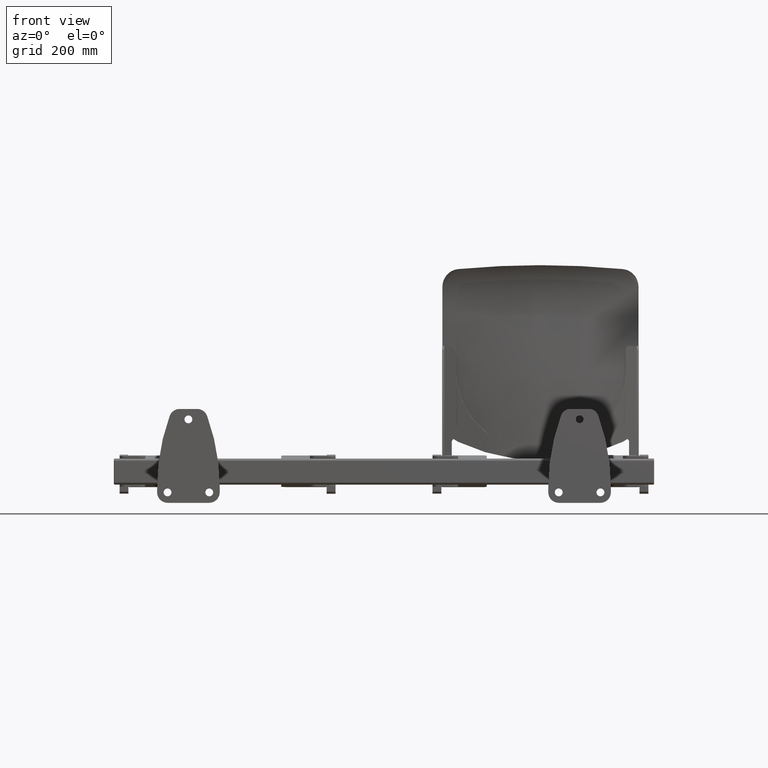
[diagram: clean part render]
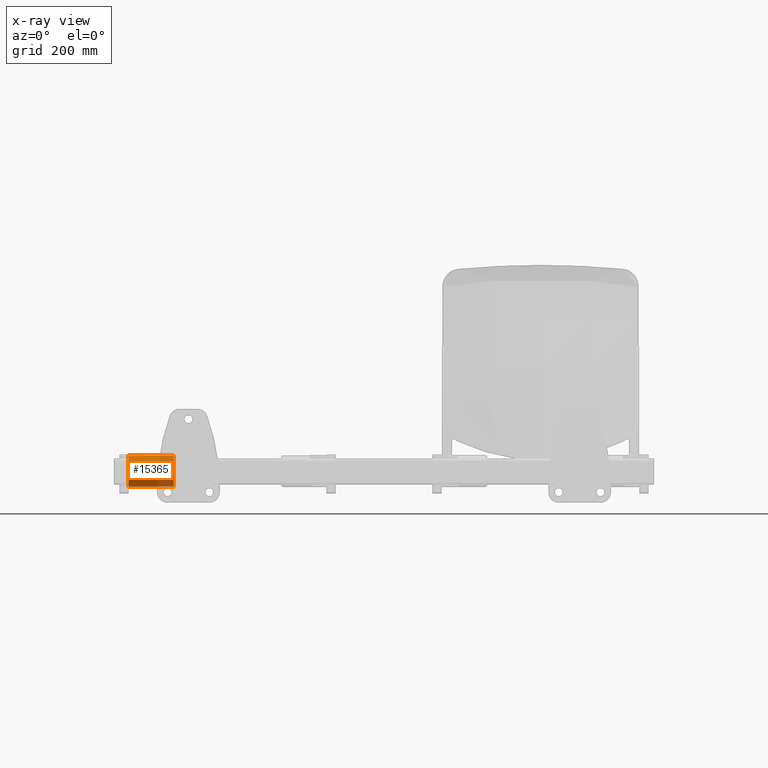
[diagram: x-ray — body ghosted, one internal face saturated and labeled with its STEP entity id]
A machine part, front view, then the same camera in x-ray: the body is ghosted and one INTERNAL B-rep face — a face not visible from any outside direction — is saturated and labeled: STEP entity #15365.
In plain terms, the highlighted cylindrical surface (edge-blend (fillet) strip) has radius 30 mm, axis along (-1, 0, 0).
Its self-contained STEP definition (entity closure, byte-faithful):
#558 = VERTEX_POINT ( 'NONE', #1736 ) ;
#559 = VERTEX_POINT ( 'NONE', #1737 ) ;
#755 = CARTESIAN_POINT ( 'NONE',  ( -102.9999999999999900, 0.0000000000000000000, 30.00000000000000000 ) ) ;
#756 = DIRECTION ( 'NONE',  ( -1.000000000000000000, 0.0000000000000000000, 0.0000000000000000000 ) ) ;
#763 = DIRECTION ( 'NONE',  ( -1.000000000000000000, 0.0000000000000000000, 0.0000000000000000000 ) ) ;
#765 = CARTESIAN_POINT ( 'NONE',  ( -102.9999999999999900, 3.673940397442058400E-015, -30.00000000000000000 ) ) ;
#1299 = DIRECTION ( 'NONE',  ( -1.000000000000000000, 0.0000000000000000000, 0.0000000000000000000 ) ) ;
#1301 = DIRECTION ( 'NONE',  ( 0.0000000000000000000, 0.0000000000000000000, 1.000000000000000000 ) ) ;
#1304 = CARTESIAN_POINT ( 'NONE',  ( -102.9999999999999900, 0.0000000000000000000, 0.0000000000000000000 ) ) ;
#1736 = CARTESIAN_POINT ( 'NONE',  ( -102.9999999999999900, 0.0000000000000000000, 30.00000000000000000 ) ) ;
#1737 = CARTESIAN_POINT ( 'NONE',  ( -190.0000000000000000, 3.673940397442058400E-015, -30.00000000000000000 ) ) ;
#4164 = CARTESIAN_POINT ( 'NONE',  ( -190.0000000000000000, 0.0000000000000000000, 0.0000000000000000000 ) ) ;
#4165 = DIRECTION ( 'NONE',  ( -1.000000000000000000, -0.0000000000000000000, -0.0000000000000000000 ) ) ;
#4166 = DIRECTION ( 'NONE',  ( 0.0000000000000000000, 0.0000000000000000000, -1.000000000000000000 ) ) ;
#7488 = CIRCLE ( 'NONE', #8340, 30.00000000000000000 ) ;
#8235 = CARTESIAN_POINT ( 'NONE',  ( -102.9999999999999900, 0.0000000000000000000, 0.0000000000000000000 ) ) ;
#8236 = DIRECTION ( 'NONE',  ( 1.000000000000000000, -0.0000000000000000000, -0.0000000000000000000 ) ) ;
#8237 = DIRECTION ( 'NONE',  ( 0.0000000000000000000, 0.0000000000000000000, -1.000000000000000000 ) ) ;
#8296 = AXIS2_PLACEMENT_3D ( 'NONE', #1304, #1299, #1301 ) ;
#8340 = AXIS2_PLACEMENT_3D ( 'NONE', #4164, #4165, #4166 ) ;
#10872 = EDGE_LOOP ( 'NONE', ( #10893, #10894, #10895, #10896 ) ) ;
#10893 = ORIENTED_EDGE ( 'NONE', *, *, #15292, .F. ) ;
#10894 = ORIENTED_EDGE ( 'NONE', *, *, #15220, .F. ) ;
#10895 = ORIENTED_EDGE ( 'NONE', *, *, #15290, .T. ) ;
#10896 = ORIENTED_EDGE ( 'NONE', *, *, #15939, .F. ) ;
#11279 = CARTESIAN_POINT ( 'NONE',  ( -102.9999999999999900, 3.673940397442058400E-015, -30.00000000000000000 ) ) ;
#11280 = CARTESIAN_POINT ( 'NONE',  ( -190.0000000000000000, 0.0000000000000000000, 30.00000000000000000 ) ) ;
#14781 = VERTEX_POINT ( 'NONE', #11279 ) ;
#14782 = VERTEX_POINT ( 'NONE', #11280 ) ;
#15220 = EDGE_CURVE ( 'NONE', #558, #14781, #16822, .T. ) ;
#15290 = EDGE_CURVE ( 'NONE', #558, #14782, #16173, .T. ) ;
#15292 = EDGE_CURVE ( 'NONE', #14781, #559, #16174, .T. ) ;
#15365 = ADVANCED_FACE ( 'NONE', ( #15431 ), #15438, .T. ) ;
#15431 = FACE_OUTER_BOUND ( 'NONE', #10872, .T. ) ;
#15438 = CYLINDRICAL_SURFACE ( 'NONE', #8296, 30.00000000000000000 ) ;
#15939 = EDGE_CURVE ( 'NONE', #559, #14782, #7488, .T. ) ;
#16009 = AXIS2_PLACEMENT_3D ( 'NONE', #8235, #8236, #8237 ) ;
#16173 = LINE ( 'NONE', #755, #16175 ) ;
#16174 = LINE ( 'NONE', #765, #16178 ) ;
#16175 = VECTOR ( 'NONE', #756, 1000.000000000000000 ) ;
#16178 = VECTOR ( 'NONE', #763, 1000.000000000000000 ) ;
#16822 = CIRCLE ( 'NONE', #16009, 30.00000000000000000 ) ;